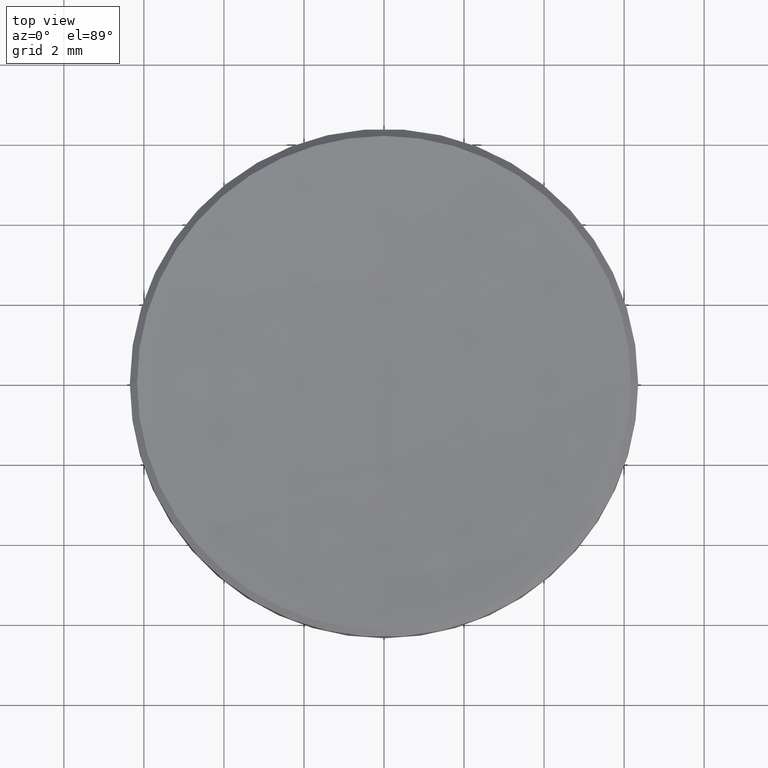
[diagram: clean part render]
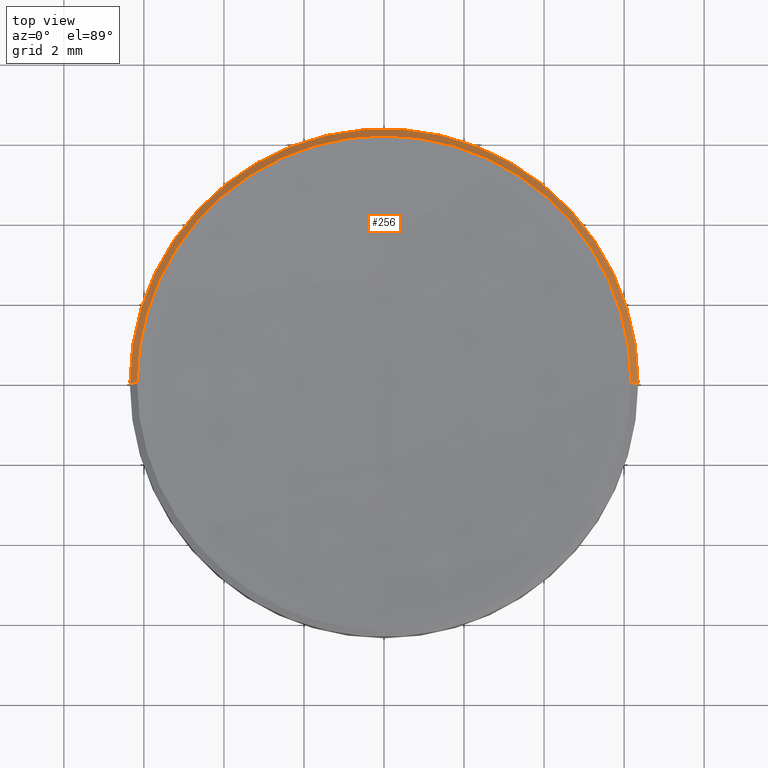
[diagram: same view with one face highlighted and labeled with its STEP entity id]
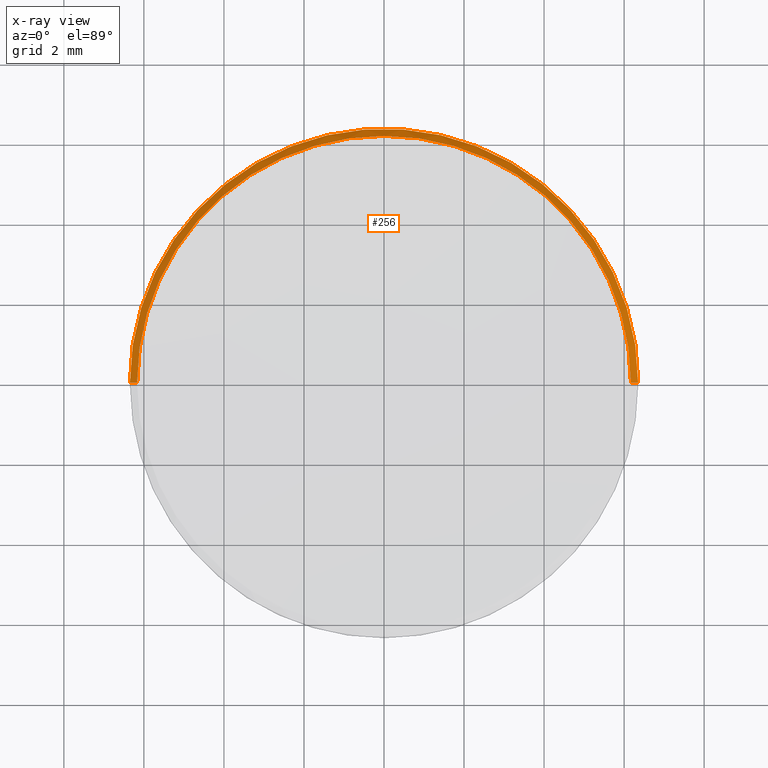
[diagram: x-ray of the same camera — body ghosted, the highlighted face saturated]
A machine part, top view. The second image highlights one B-rep face of the part: STEP entity #256.
The next image is the same camera in x-ray: the body ghosted, the highlighted face saturated — about 0% of this face is hidden behind the body in this view.
In plain terms, the highlighted conical surface has half-angle 45 deg.
Its self-contained STEP definition (entity closure, byte-faithful):
#4 = ORIENTED_EDGE ( 'NONE', *, *, #241, .F. ) ;
#10 = ORIENTED_EDGE ( 'NONE', *, *, #133, .F. ) ;
#20 = VECTOR ( 'NONE', #222, 999.9999999999998863 ) ;
#26 = AXIS2_PLACEMENT_3D ( 'NONE', #151, #105, #112 ) ;
#27 = DIRECTION ( 'NONE',  ( -0.000000000000000000, -0.000000000000000000, 1.000000000000000000 ) ) ;
#34 = DIRECTION ( 'NONE',  ( 1.000000000000000000, 0.000000000000000000, 0.000000000000000000 ) ) ;
#45 = VERTEX_POINT ( 'NONE', #179 ) ;
#56 = CARTESIAN_POINT ( 'NONE',  ( 0.000000000000000000, 0.000000000000000000, 5.978664610365724386 ) ) ;
#58 = CIRCLE ( 'NONE', #223, 6.171335389634259094 ) ;
#62 = DIRECTION ( 'NONE',  ( -1.000000000000000000, 0.000000000000000000, 0.000000000000000000 ) ) ;
#64 = AXIS2_PLACEMENT_3D ( 'NONE', #176, #27, #34 ) ;
#88 = CIRCLE ( 'NONE', #64, 6.171335389634259094 ) ;
#93 = CIRCLE ( 'NONE', #26, 6.349999999999999645 ) ;
#95 = VERTEX_POINT ( 'NONE', #203 ) ;
#96 = EDGE_CURVE ( 'NONE', #45, #196, #119, .T. ) ;
#100 = CARTESIAN_POINT ( 'NONE',  ( 0.000000000000000000, 0.000000000000000000, 5.978664610365738596 ) ) ;
#104 = DIRECTION ( 'NONE',  ( 0.7071067811865716646, 8.659560562355227448E-17, -0.7071067811865234809 ) ) ;
#105 = DIRECTION ( 'NONE',  ( 0.000000000000000000, 0.000000000000000000, -1.000000000000000000 ) ) ;
#112 = DIRECTION ( 'NONE',  ( 1.000000000000000000, 0.000000000000000000, 0.000000000000000000 ) ) ;
#119 = LINE ( 'NONE', #165, #150 ) ;
#120 = ORIENTED_EDGE ( 'NONE', *, *, #96, .T. ) ;
#133 = EDGE_CURVE ( 'NONE', #95, #135, #88, .T. ) ;
#135 = VERTEX_POINT ( 'NONE', #158 ) ;
#147 = LINE ( 'NONE', #159, #20 ) ;
#150 = VECTOR ( 'NONE', #104, 999.9999999999998863 ) ;
#151 = CARTESIAN_POINT ( 'NONE',  ( 0.000000000000000000, 0.000000000000000000, 5.800000000000006928 ) ) ;
#155 = ORIENTED_EDGE ( 'NONE', *, *, #263, .F. ) ;
#156 = CARTESIAN_POINT ( 'NONE',  ( -6.349999999999999645, 0.000000000000000000, 5.800000000000006928 ) ) ;
#158 = CARTESIAN_POINT ( 'NONE',  ( -6.171335389634259094, 0.000000000000000000, 5.978664610365738596 ) ) ;
#159 = CARTESIAN_POINT ( 'NONE',  ( -6.171335389634268864, 0.000000000000000000, 5.978664610365724386 ) ) ;
#165 = CARTESIAN_POINT ( 'NONE',  ( 6.171335389634268864, 7.557706131380392202E-16, 5.978664610365724386 ) ) ;
#176 = CARTESIAN_POINT ( 'NONE',  ( 0.000000000000000000, 0.000000000000000000, 5.978664610365738596 ) ) ;
#177 = ORIENTED_EDGE ( 'NONE', *, *, #187, .F. ) ;
#179 = CARTESIAN_POINT ( 'NONE',  ( 6.171335389634259094, 7.667106652983034787E-16, 5.978664610365738596 ) ) ;
#184 = DIRECTION ( 'NONE',  ( -0.000000000000000000, -0.000000000000000000, 1.000000000000000000 ) ) ;
#187 = EDGE_CURVE ( 'NONE', #135, #228, #147, .T. ) ;
#196 = VERTEX_POINT ( 'NONE', #231 ) ;
#198 = CONICAL_SURFACE ( 'NONE', #219, 6.171335389634268864, 0.7853981633974822518 ) ;
#203 = CARTESIAN_POINT ( 'NONE',  ( 0.000000000000000000, 6.171335389634308832, 5.978664610365742149 ) ) ;
#217 = EDGE_LOOP ( 'NONE', ( #4, #120, #155, #177, #10 ) ) ;
#219 = AXIS2_PLACEMENT_3D ( 'NONE', #56, #280, #62 ) ;
#222 = DIRECTION ( 'NONE',  ( -0.7071067811865716646, 0.000000000000000000, -0.7071067811865234809 ) ) ;
#223 = AXIS2_PLACEMENT_3D ( 'NONE', #100, #184, #277 ) ;
#228 = VERTEX_POINT ( 'NONE', #156 ) ;
#231 = CARTESIAN_POINT ( 'NONE',  ( 6.349999999999999645, 7.776507174585692163E-16, 5.800000000000006928 ) ) ;
#233 = FACE_OUTER_BOUND ( 'NONE', #217, .T. ) ;
#241 = EDGE_CURVE ( 'NONE', #45, #95, #58, .T. ) ;
#256 = ADVANCED_FACE ( 'NONE', ( #233 ), #198, .T. ) ;
#263 = EDGE_CURVE ( 'NONE', #228, #196, #93, .T. ) ;
#277 = DIRECTION ( 'NONE',  ( 1.000000000000000000, 0.000000000000000000, 0.000000000000000000 ) ) ;
#280 = DIRECTION ( 'NONE',  ( 0.000000000000000000, 0.000000000000000000, -1.000000000000000000 ) ) ;